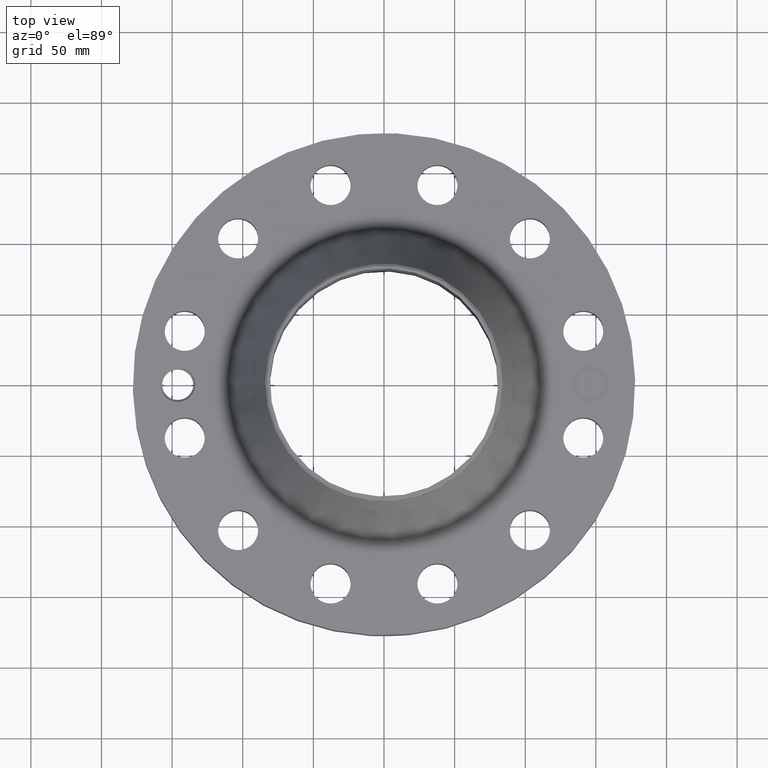
[diagram: clean part render]
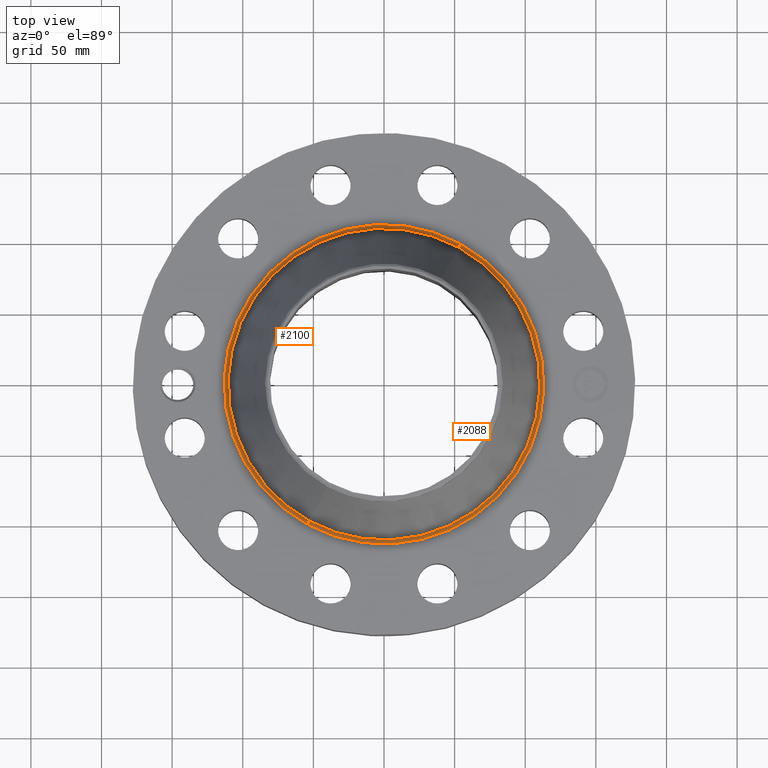
[diagram: same view with one multi-face feature highlighted, each face labeled with its STEP entity id]
A machine part, top view. The highlighted faces form ONE feature: a constant-radius fillet chain: 2 tangent blend faces with common blend radius 3.048 mm. The faces share edges in the B-rep.
Their STEP definitions:
[1] entity #2088 (Torus):
#644=AXIS2_PLACEMENT_3D('Circle Axis2P3D',#642,#643,$) ;
#2061=AXIS2_PLACEMENT_3D('Torus Axis2P3D',#2058,#2059,#2060) ;
#2065=AXIS2_PLACEMENT_3D('Circle Axis2P3D',#2063,#2064,$) ;
#2072=AXIS2_PLACEMENT_3D('Circle Axis2P3D',#2070,#2071,$) ;
#2079=AXIS2_PLACEMENT_3D('Circle Axis2P3D',#2077,#2078,$) ;
#637=CARTESIAN_POINT('Vertex',(-2.13533832366,-3.90871058317,2.13000000001)) ;
#639=CARTESIAN_POINT('Vertex',(2.13533832366,3.90871058317,2.13000000001)) ;
#642=CARTESIAN_POINT('Axis2P3D Location',(0.,0.,2.13000000001)) ;
#2058=CARTESIAN_POINT('Axis2P3D Location',(0.,0.,2.25000000001)) ;
#2063=CARTESIAN_POINT('Axis2P3D Location',(2.13533832366,3.90871058317,2.25000000001)) ;
#2067=CARTESIAN_POINT('Vertex',(2.08250529014,3.812000364,2.20250469416)) ;
#2070=CARTESIAN_POINT('Axis2P3D Location',(0.,0.,2.20250469416)) ;
#2074=CARTESIAN_POINT('Vertex',(-2.08250529014,-3.812000364,2.20250469416)) ;
#2077=CARTESIAN_POINT('Axis2P3D Location',(-2.13533832366,-3.90871058317,2.25000000001)) ;
#643=DIRECTION('Axis2P3D Direction',(0.,0.,-0.0393700787402)) ;
#2059=DIRECTION('Axis2P3D Direction',(0.,0.,-0.0393700787402)) ;
#2060=DIRECTION('Axis2P3D XDirection',(-0.0188750212049,-0.0345504945626,0.)) ;
#2064=DIRECTION('Axis2P3D Direction',(-0.0345504945626,0.0188750212049,0.)) ;
#2071=DIRECTION('Axis2P3D Direction',(0.,0.,-0.0393700787402)) ;
#2078=DIRECTION('Axis2P3D Direction',(0.0345504945626,-0.0188750212049,0.)) ;
#2083=ORIENTED_EDGE('',*,*,#646,.F.) ;
#2084=ORIENTED_EDGE('',*,*,#2069,.T.) ;
#2085=ORIENTED_EDGE('',*,*,#2076,.T.) ;
#2086=ORIENTED_EDGE('',*,*,#2081,.F.) ;
#2088=ADVANCED_FACE('PartBody',(#2087),#2062,.F.) ;
#645=CIRCLE('generated circle',#644,4.45395197319) ;
#2066=CIRCLE('generated circle',#2065,0.12) ;
#2073=CIRCLE('generated circle',#2072,4.34375126574) ;
#2080=CIRCLE('generated circle',#2079,0.12) ;
#2062=TOROIDAL_SURFACE('homeo Torus',#2061,4.45395197319,0.12) ;
#646=EDGE_CURVE('',#640,#638,#645,.T.) ;
#2069=EDGE_CURVE('',#640,#2068,#2066,.T.) ;
#2076=EDGE_CURVE('',#2068,#2075,#2073,.T.) ;
#2081=EDGE_CURVE('',#638,#2075,#2080,.T.) ;
#2082=EDGE_LOOP('',(#2083,#2084,#2085,#2086)) ;
#2087=FACE_OUTER_BOUND('',#2082,.T.) ;
#638=VERTEX_POINT('',#637) ;
#640=VERTEX_POINT('',#639) ;
#2068=VERTEX_POINT('',#2067) ;
#2075=VERTEX_POINT('',#2074) ;
[2] entity #2100 (Torus):
#635=AXIS2_PLACEMENT_3D('Circle Axis2P3D',#633,#634,$) ;
#2061=AXIS2_PLACEMENT_3D('Torus Axis2P3D',#2058,#2059,#2060) ;
#2065=AXIS2_PLACEMENT_3D('Circle Axis2P3D',#2063,#2064,$) ;
#2079=AXIS2_PLACEMENT_3D('Circle Axis2P3D',#2077,#2078,$) ;
#2091=AXIS2_PLACEMENT_3D('Circle Axis2P3D',#2089,#2090,$) ;
#633=CARTESIAN_POINT('Axis2P3D Location',(0.,0.,2.13000000001)) ;
#637=CARTESIAN_POINT('Vertex',(-2.13533832366,-3.90871058317,2.13000000001)) ;
#639=CARTESIAN_POINT('Vertex',(2.13533832366,3.90871058317,2.13000000001)) ;
#2058=CARTESIAN_POINT('Axis2P3D Location',(0.,0.,2.25000000001)) ;
#2063=CARTESIAN_POINT('Axis2P3D Location',(2.13533832366,3.90871058317,2.25000000001)) ;
#2067=CARTESIAN_POINT('Vertex',(2.08250529014,3.812000364,2.20250469416)) ;
#2074=CARTESIAN_POINT('Vertex',(-2.08250529014,-3.812000364,2.20250469416)) ;
#2077=CARTESIAN_POINT('Axis2P3D Location',(-2.13533832366,-3.90871058317,2.25000000001)) ;
#2089=CARTESIAN_POINT('Axis2P3D Location',(0.,0.,2.20250469416)) ;
#634=DIRECTION('Axis2P3D Direction',(0.,0.,-0.0393700787402)) ;
#2059=DIRECTION('Axis2P3D Direction',(0.,0.,-0.0393700787402)) ;
#2060=DIRECTION('Axis2P3D XDirection',(-0.0188750212049,-0.0345504945626,0.)) ;
#2064=DIRECTION('Axis2P3D Direction',(-0.0345504945626,0.0188750212049,0.)) ;
#2078=DIRECTION('Axis2P3D Direction',(0.0345504945626,-0.0188750212049,0.)) ;
#2090=DIRECTION('Axis2P3D Direction',(0.,0.,-0.0393700787402)) ;
#2095=ORIENTED_EDGE('',*,*,#641,.F.) ;
#2096=ORIENTED_EDGE('',*,*,#2081,.T.) ;
#2097=ORIENTED_EDGE('',*,*,#2093,.T.) ;
#2098=ORIENTED_EDGE('',*,*,#2069,.F.) ;
#2100=ADVANCED_FACE('PartBody',(#2099),#2062,.F.) ;
#636=CIRCLE('generated circle',#635,4.45395197319) ;
#2066=CIRCLE('generated circle',#2065,0.12) ;
#2080=CIRCLE('generated circle',#2079,0.12) ;
#2092=CIRCLE('generated circle',#2091,4.34375126574) ;
#2062=TOROIDAL_SURFACE('homeo Torus',#2061,4.45395197319,0.12) ;
#641=EDGE_CURVE('',#638,#640,#636,.T.) ;
#2069=EDGE_CURVE('',#640,#2068,#2066,.T.) ;
#2081=EDGE_CURVE('',#638,#2075,#2080,.T.) ;
#2093=EDGE_CURVE('',#2075,#2068,#2092,.T.) ;
#2094=EDGE_LOOP('',(#2095,#2096,#2097,#2098)) ;
#2099=FACE_OUTER_BOUND('',#2094,.T.) ;
#638=VERTEX_POINT('',#637) ;
#640=VERTEX_POINT('',#639) ;
#2068=VERTEX_POINT('',#2067) ;
#2075=VERTEX_POINT('',#2074) ;